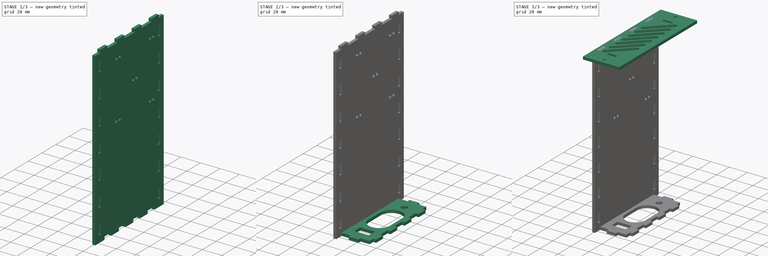
[diagram: build sequence overview — one tinted view per stage of 3, left to right]
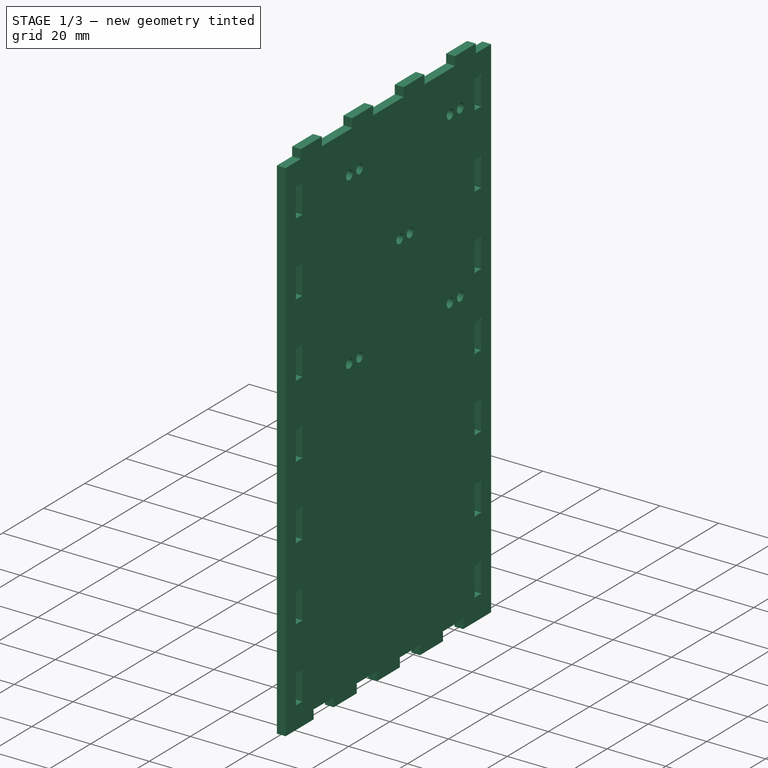
[diagram: stage 1 of 3 — iso view after this stage's code; geometry added in this stage tinted green]
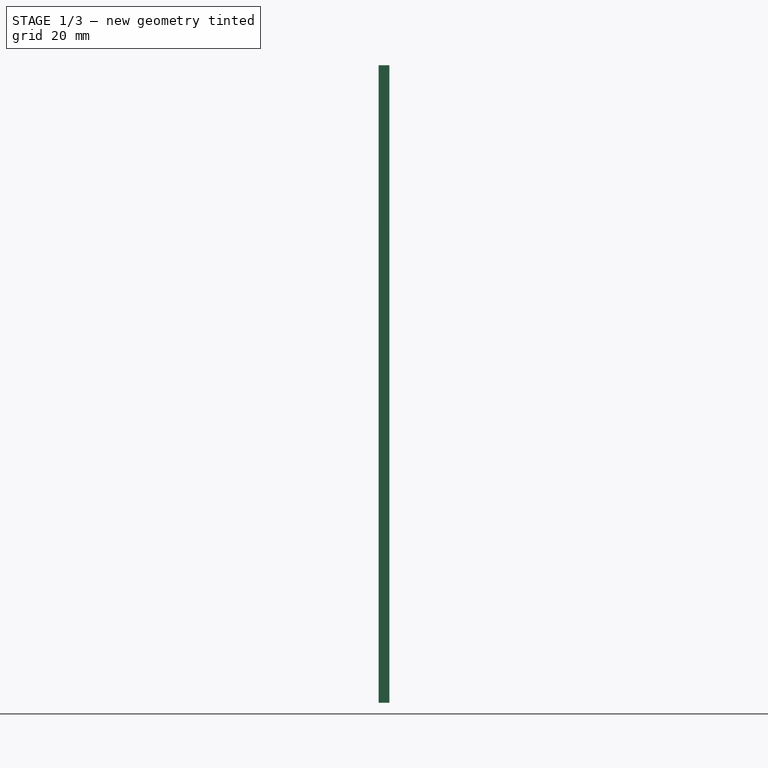
[diagram: stage 1 of 3 — front view after this stage's code; geometry added in this stage tinted green]
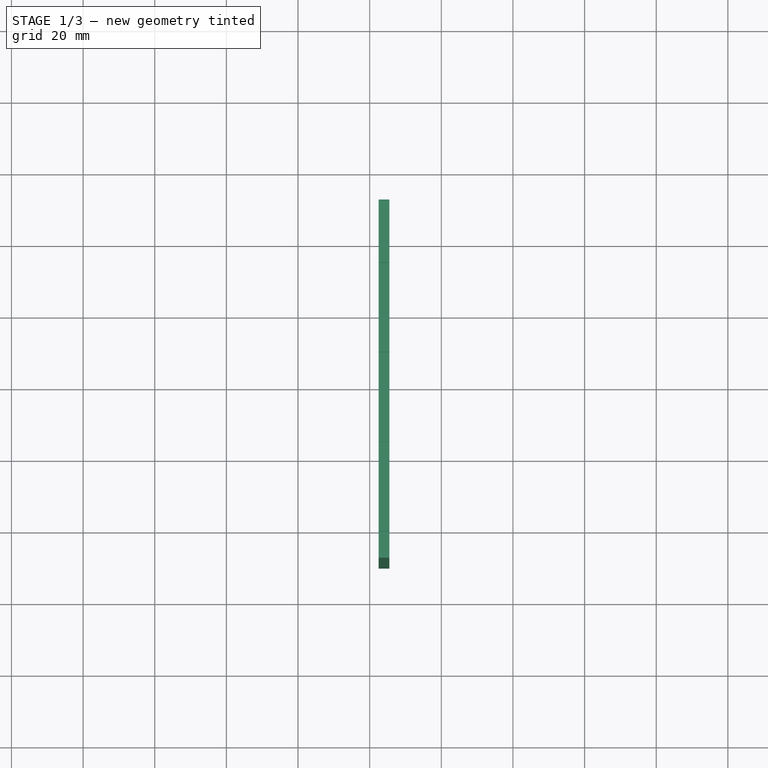
[diagram: stage 1 of 3 — top view after this stage's code; geometry added in this stage tinted green]
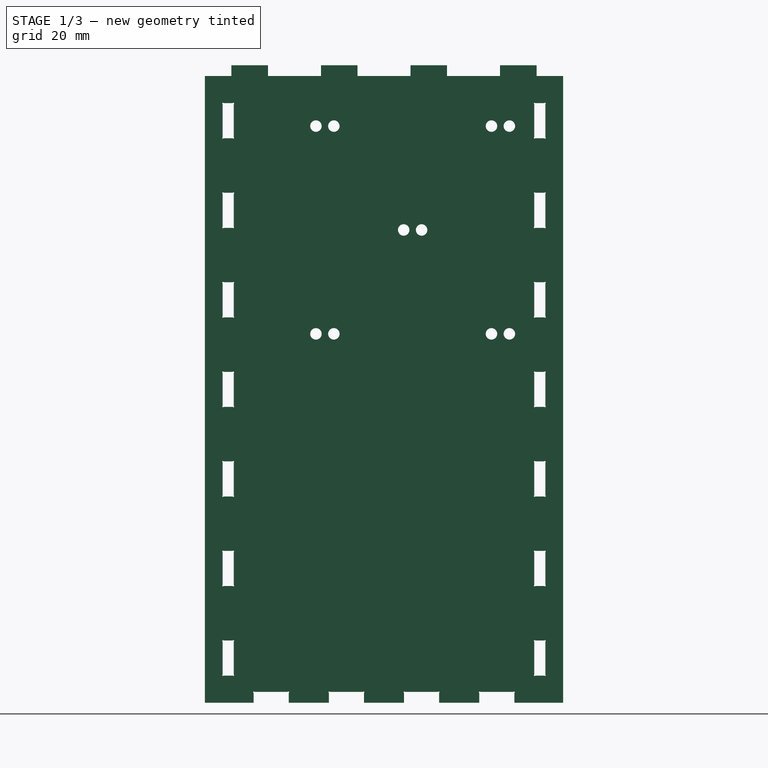
[diagram: stage 1 of 3 — right view after this stage's code; geometry added in this stage tinted green]
FCSTD DOCUMENT  (FreeCAD 0.18R16146 (Git))
Label: pibox_base
License: All rights reserved
LicenseURL: http://en.wikipedia.org/wiki/All_rights_reserved
objects: Part::Feature×12, Sketcher::SketchObject×4, PartDesign::Body×4, PartDesign::FeatureBase×3, PartDesign::Pocket×3, Part::FeaturePython×2, App::DocumentObjectGroup×1, PartDesign::ShapeBinder×1
note: 32 computed .brp shape members not serialized (recipe doc carries the construction recipe); baked Part::Feature solids carry a one-line shape summary decoded from their .brp

FEATURE [PartDesign::Body] Body002  label="Back"
  BaseFeature = -> bottom_panel_tab
  Group = -> [BaseFeature001,Sketch002,Pocket001]
  Origin = -> Origin002
  Tip = -> Pocket001
FEATURE [PartDesign::FeatureBase] BaseFeature002
  BaseFeature = -> right_panel_tab
FEATURE [Sketcher::SketchObject] Sketch003
  ExternalGeometry = -> [BaseFeature002]
  MapMode = 5
  Placement = pos=(-17.5,0,0) rot=(0.57735,-0.57735,-0.57735;2.0944rad)
  Support = -> [BaseFeature002]
  sketch-geometry (19):
    g0: LineSegment [constr] StartX=-35 StartY=72 StartZ=0 EndX=14 EndY=72 EndZ=0
    g1: LineSegment [constr] StartX=14 StartY=72 StartZ=0 EndX=14 EndY=14 EndZ=0
    g2: LineSegment [constr] StartX=14 StartY=14 StartZ=0 EndX=-35 EndY=14 EndZ=0
    g3: LineSegment [constr] StartX=-35 StartY=14 StartZ=0 EndX=-35 EndY=72 EndZ=0
    g4: Circle CenterX=-35 CenterY=72 CenterZ=0 NormalX=0 NormalY=0 NormalZ=1 AngleXU=0 Radius=1.6
    g5: Circle CenterX=14 CenterY=72 CenterZ=0 NormalX=0 NormalY=0 NormalZ=1 AngleXU=0 Radius=1.6
    g6: Circle CenterX=14 CenterY=14 CenterZ=0 NormalX=0 NormalY=0 NormalZ=1 AngleXU=0 Radius=1.6
    g7: Circle CenterX=-35 CenterY=14 CenterZ=0 NormalX=0 NormalY=0 NormalZ=1 AngleXU=0 Radius=1.6
    g8: Circle CenterX=-10.5 CenterY=43 CenterZ=0 NormalX=0 NormalY=0 NormalZ=1 AngleXU=0 Radius=1.6
    g9: LineSegment [constr] StartX=-30 StartY=72 StartZ=0 EndX=19 EndY=72 EndZ=0
    g10: LineSegment [constr] StartX=19 StartY=72 StartZ=0 EndX=19 EndY=14 EndZ=0
    g11: LineSegment [constr] StartX=19 StartY=14 StartZ=0 EndX=-30 EndY=14 EndZ=0
    g12: LineSegment [constr] StartX=-30 StartY=14 StartZ=0 EndX=-30 EndY=72 EndZ=0
    g13: Circle CenterX=-30 CenterY=72 CenterZ=0 NormalX=0 NormalY=0 NormalZ=1 AngleXU=0 Radius=1.6
    g14: Circle CenterX=19 CenterY=72 CenterZ=0 NormalX=0 NormalY=0 NormalZ=1 AngleXU=0 Radius=1.6
    g15: Circle CenterX=19 CenterY=14 CenterZ=0 NormalX=0 NormalY=0 NormalZ=1 AngleXU=0 Radius=1.6
    g16: Circle CenterX=-30 CenterY=14 CenterZ=0 NormalX=0 NormalY=0 NormalZ=1 AngleXU=0 Radius=1.6
    g17: Circle CenterX=-5.5 CenterY=43 CenterZ=0 NormalX=0 NormalY=0 NormalZ=1 AngleXU=0 Radius=1.6
    g18: LineSegment [constr] StartX=-35 StartY=72 StartZ=0 EndX=-30 EndY=72 EndZ=0
  constraints (46):
    c: Coincident(g0,g1)
    c: Coincident(g1,g2)
    c: Coincident(g2,g3)
    c: Coincident(g3,g0)
    c: Horizontal(g0)
    c: Horizontal(g2)
    c: Vertical(g1)
    c: Vertical(g3)
    c: Coincident(g4,g0)
    c: Diameter(g4) = 3.2  'M3_dia'
    c: Equal(g4,g5) = 3.2  'M3_dia'
    c: Coincident(g5,g0)
    c: Equal(g4,g6) = 3.2  'M3_dia'
    c: Coincident(g6,g1)
    c: Equal(g4,g7) = 3.2  'M3_dia'
    c: Coincident(g7,g2)
    c: DistanceY(g3,g3) = 58
    c: DistanceX(g0,g0) = 49
    c: DistanceX(g-3,g4) = 15
    c: Equal(g4,g8) = 3.2  'M3_dia'
    c: Symmetric(g5,g7,g8)
    c: DistanceY(g4,g-4) = 14
    c: Coincident(g9,g10)
    c: Coincident(g10,g11)
    c: Coincident(g11,g12)
    c: Coincident(g12,g9)
    c: Horizontal(g9)
    c: Horizontal(g11)
    c: Vertical(g10)
    c: Vertical(g12)
    c: Coincident(g13,g9)
    c: Diameter(g13) = 3.2  'M3_dia'
    c: Equal(g13,g14) = 3.2  'M3_dia'
    c: Coincident(g14,g9)
    c: Equal(g13,g15) = 3.2  'M3_dia'
    c: Coincident(g15,g10)
    c: Equal(g13,g16) = 3.2  'M3_dia'
    c: Coincident(g16,g11)
    c: DistanceY(g12,g12) = 58
    c: DistanceX(g9,g9) = 49
    c: Equal(g13,g17) = 3.2  'M3_dia'
    c: Symmetric(g14,g16,g17)
    c: Coincident(g0,g18)
    c: Coincident(g9,g18)
    c: Distance(g18) = 5
    c: Horizontal(g18)
FEATURE [PartDesign::Pocket] Pocket002
  BaseFeature = -> BaseFeature002
  Length = 5
  Length2 = 100
  Profile = -> Sketch003
  Type = 1
FEATURE [PartDesign::Body] Body003  label="Mount Base"
  BaseFeature = -> right_panel_tab
  Group = -> [BaseFeature002,Sketch003,Pocket002]
  Origin = -> Origin003
  Tip = -> Pocket002
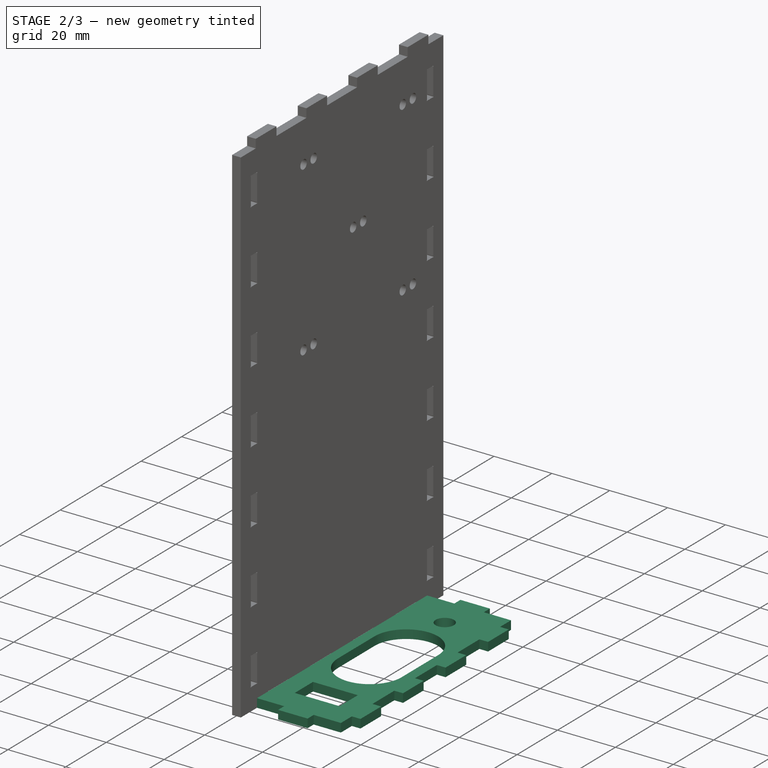
[diagram: stage 2 of 3 — iso view after this stage's code; geometry added in this stage tinted green]
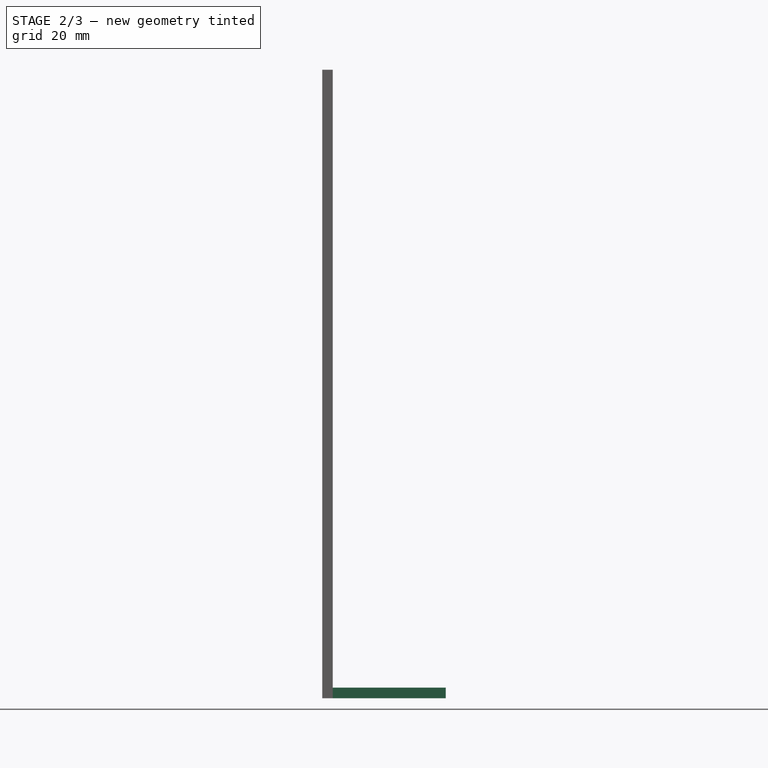
[diagram: stage 2 of 3 — front view after this stage's code; geometry added in this stage tinted green]
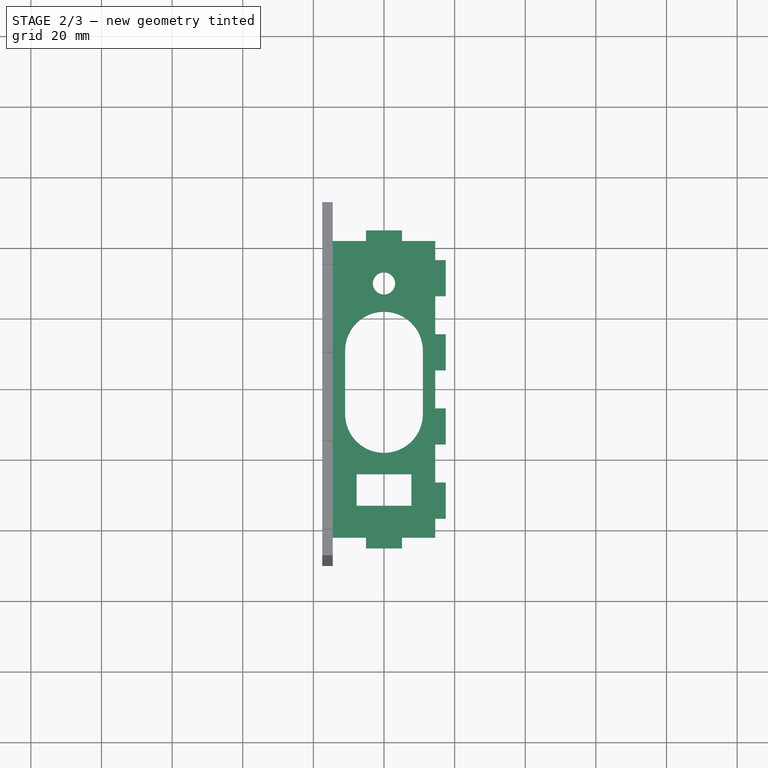
[diagram: stage 2 of 3 — top view after this stage's code; geometry added in this stage tinted green]
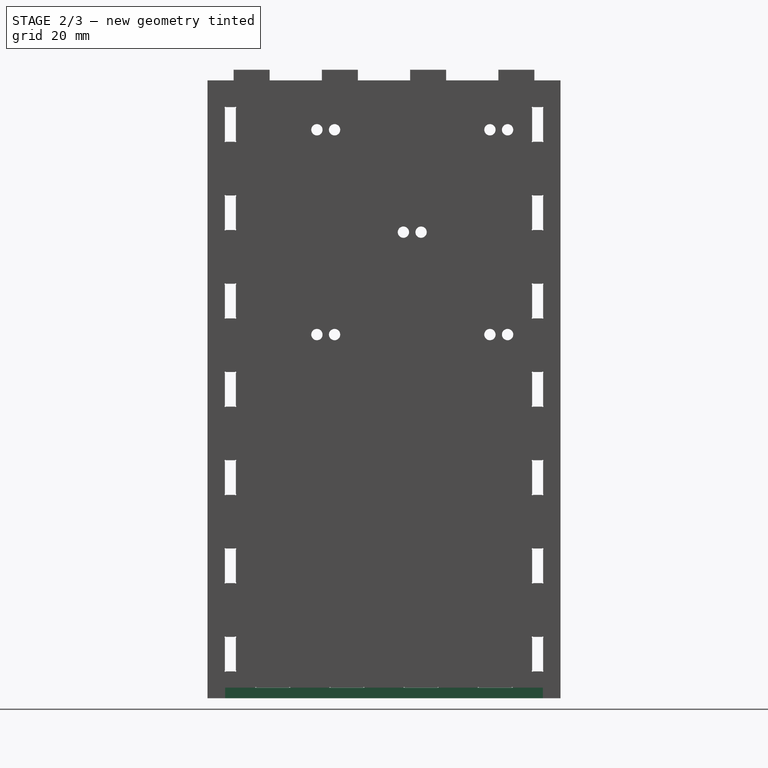
[diagram: stage 2 of 3 — right view after this stage's code; geometry added in this stage tinted green]
FEATURE [PartDesign::Body] Body001  label="Front Panel"
  BaseFeature = -> top_panel_tab
  Group = -> [BaseFeature,Pocket]
  Origin = -> Origin001
  Tip = -> Pocket
FEATURE [PartDesign::FeatureBase] BaseFeature001
  BaseFeature = -> bottom_panel_tab
FEATURE [Sketcher::SketchObject] Sketch002
  ExternalGeometry = -> [BaseFeature001]
  MapMode = 5
  Placement = pos=(0,0,-89) rot=(1,0,0;3.14159rad)
  Support = -> [BaseFeature001]
  sketch-geometry (13):
    g0: LineSegment StartX=-7.75 StartY=33 StartZ=0 EndX=7.75 EndY=33 EndZ=0
    g1: LineSegment StartX=7.75 StartY=33 StartZ=0 EndX=7.75 EndY=24 EndZ=0
    g2: LineSegment StartX=7.75 StartY=24 StartZ=0 EndX=-7.75 EndY=24 EndZ=0
    g3: LineSegment StartX=-7.75 StartY=24 StartZ=0 EndX=-7.75 EndY=33 EndZ=0
    g4: GeomPoint X=0 Y=28.5 Z=0
    g5: Circle CenterX=0 CenterY=-30 CenterZ=0 NormalX=0 NormalY=0 NormalZ=1 AngleXU=0 Radius=3.15
    g6: GeomPoint X=4e-16 Y=-42 Z=0
    g7: ArcOfCircle CenterX=0 CenterY=-11 CenterZ=0 NormalX=0 NormalY=0 NormalZ=1 AngleXU=0 Radius=11 StartAngle=3.14159 EndAngle=6.28319
    g8: ArcOfCircle CenterX=7e-16 CenterY=7 CenterZ=0 NormalX=0 NormalY=0 NormalZ=1 AngleXU=0 Radius=11 StartAngle=0 EndAngle=3.14159
    g9: LineSegment StartX=11 StartY=-11 StartZ=0 EndX=11 EndY=7 EndZ=0
    g10: LineSegment StartX=-11 StartY=-11 StartZ=0 EndX=-11 EndY=7 EndZ=0
    g11: GeomPoint X=0 Y=18 Z=0
    g12: GeomPoint X=0 Y=-22 Z=0
  constraints (31):
    c: Coincident(g0,g1)
    c: Coincident(g1,g2)
    c: Coincident(g2,g3)
    c: Coincident(g3,g0)
    c: Horizontal(g0)
    c: Horizontal(g2)
    c: Vertical(g1)
    c: Vertical(g3)
    c: DistanceY(g1,g1) = 9
    c: DistanceX(g0,g0) = 15.5
    c: PointOnObject(g4,g-2)
    c: Symmetric(g1,g0,g4)
    c: DistanceY(g0,g-3) = 9
    c: Diameter(g5) = 6.3
    c: Symmetric(g-6,g-6,g6)
    c: Tangent(g7,g10) = 1.5708
    c: Tangent(g7,g9) = -1.5708
    c: Tangent(g9,g8) = -1.5708
    c: Tangent(g10,g8) = 1.5708
    c: Vertical(g9)
    c: Equal(g7,g8)
    c: PointOnObject(g5,g-2)
    c: DistanceY(g6,g5) = 12
    c: PointOnObject(g7,g-2)
    c: PointOnObject(g11,g8)
    c: PointOnObject(g11,g-2)
    c: PointOnObject(g12,g7)
    c: PointOnObject(g12,g-2)
    c: DistanceY(g6,g12) = 20
    c: DistanceY(g11,g2) = 6
    c: DistanceX(g8,g8) = 22
FEATURE [PartDesign::Pocket] Pocket001
  BaseFeature = -> BaseFeature001
  Length = 5
  Length2 = 100
  Profile = -> Sketch002
  Type = 1
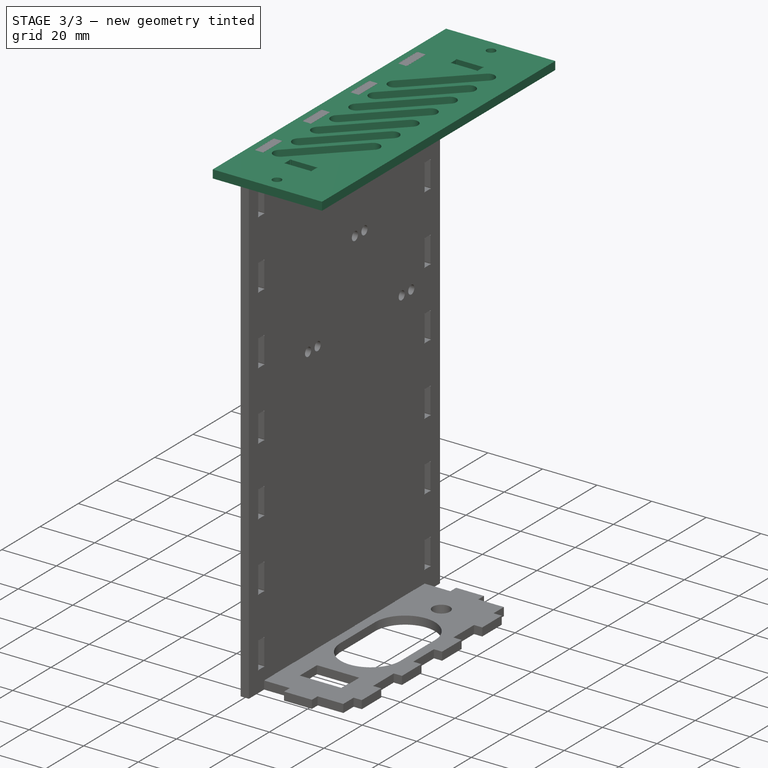
[diagram: stage 3 of 3 — iso view after this stage's code; geometry added in this stage tinted green]
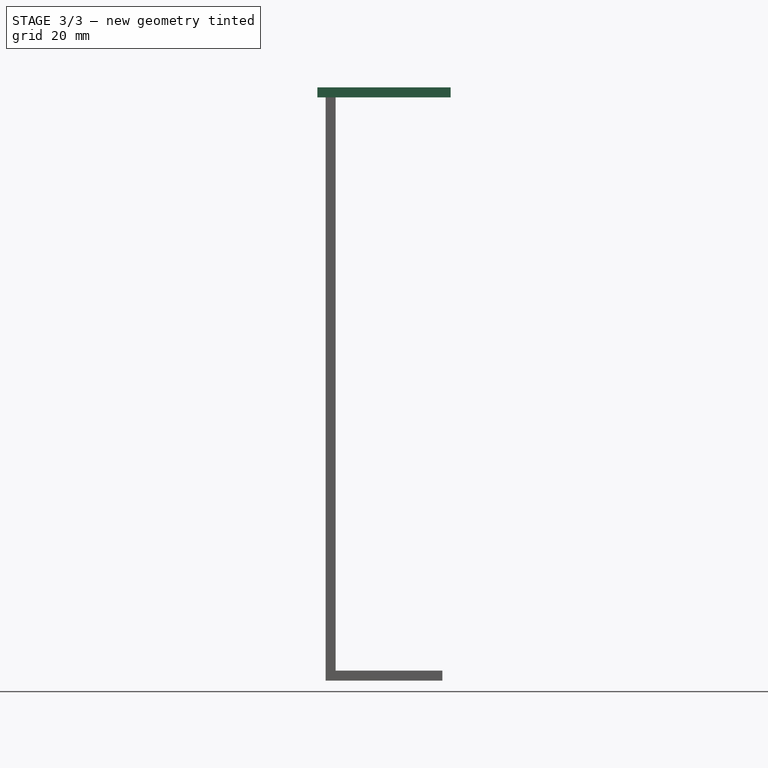
[diagram: stage 3 of 3 — front view after this stage's code; geometry added in this stage tinted green]
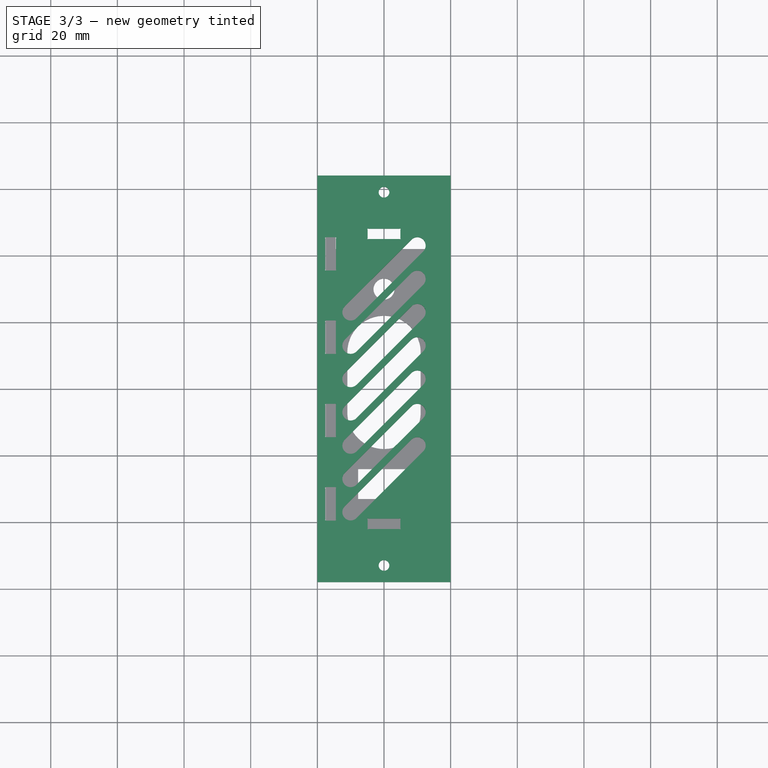
[diagram: stage 3 of 3 — top view after this stage's code; geometry added in this stage tinted green]
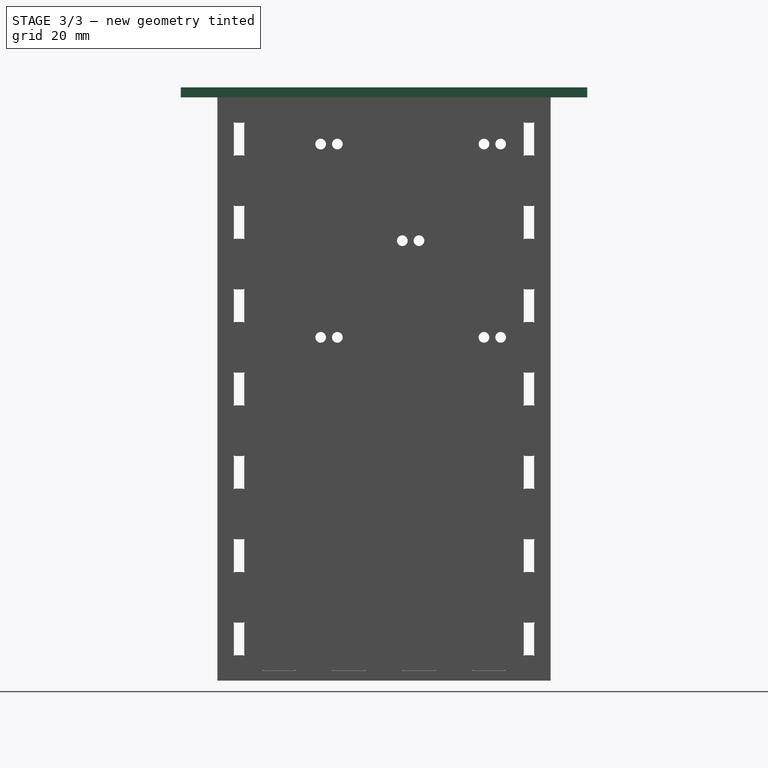
[diagram: stage 3 of 3 — right view after this stage's code; geometry added in this stage tinted green]
FEATURE [Part::Feature] face_panel
  Placement = pos=(0,0,-1.5) rot=(0,0,1;0rad)
  shape: bbox 29 x 3 x 175 mm, 6 faces (baked)
FEATURE [Part::Feature] left_panel
  Placement = pos=(0,0,-1.5) rot=(0,0,1;0rad)
  shape: bbox 3 x 100 x 175 mm, 6 faces (baked)
FEATURE [Part::Feature] bottom_panel
  Placement = pos=(0,0,-1.5) rot=(0,0,1;0rad)
  shape: bbox 29 x 84 x 3 mm, 6 faces (baked)
FEATURE [Part::Feature] behind_panel
  Placement = pos=(0,-87,-1.5) rot=(0,0,1;0rad)
  shape: bbox 29 x 3 x 175 mm, 6 faces (baked)
FEATURE [Part::Feature] right_panel
  Placement = pos=(-32,0,-1.5) rot=(0,0,1;0rad)
  shape: bbox 3 x 100 x 175 mm, 6 faces (baked)
FEATURE [Part::Feature] top_panel
  Placement = pos=(0,0,-1.5) rot=(0,0,1;0rad)
  shape: bbox 40 x 122 x 3 mm, 6 faces (baked)
FEATURE [Part::FeaturePython] Box  # WARN: FeaturePython — macro-defined, semantics opaque (R4)
  parts = -> [face_panel,behind_panel,left_panel,right_panel,bottom_panel,top_panel]
FEATURE [App::DocumentObjectGroup] MultiJoin_origin_parts
  Group = -> [face_panel,left_panel,right_panel,bottom_panel,top_panel,behind_panel]
FEATURE [Part::Feature] face_panel_tab
  shape: bbox 35 x 3 x 178 mm, 80 faces (baked)
FEATURE [Part::Feature] left_panel_tab
  shape: bbox 3 x 100 x 175 mm, 98 faces (baked)
FEATURE [Part::Feature] right_panel_tab
  shape: bbox 3 x 100 x 178 mm, 202 faces (baked)
FEATURE [Part::Feature] bottom_panel_tab
  shape: bbox 35 x 90 x 3 mm, 66 faces (baked)
FEATURE [Part::Feature] top_panel_tab
  shape: bbox 40 x 122 x 3 mm, 66 faces (baked)
FEATURE [Part::Feature] behind_panel_tab
  shape: bbox 35 x 3 x 178 mm, 80 faces (baked)
FEATURE [Part::FeaturePython] MultiJoin  # WARN: FeaturePython — macro-defined, semantics opaque (R4)
  fromParts = -> [MultiJoin_origin_parts,face_panel,left_panel,right_panel,bottom_panel,top_panel,behind_panel]
  generatedParts = -> [face_panel_tab,left_panel_tab,right_panel_tab,bottom_panel_tab,top_panel_tab,behind_panel_tab]
FEATURE [PartDesign::ShapeBinder] Referencetop_panel_tab
  Support = -> [top_panel_tab]
  TraceSupport = false
FEATURE [Sketcher::SketchObject] Sketch
  MapMode = 5
  Placement = pos=(0,0,89) rot=(0,0,1;0rad)
  Support = -> [top_panel_tab]
  sketch-geometry (78):
    g0: Circle CenterX=0 CenterY=56 CenterZ=0 NormalX=0 NormalY=0 NormalZ=1 AngleXU=0 Radius=1.6
    g1: Circle CenterX=0 CenterY=-56 CenterZ=0 NormalX=0 NormalY=0 NormalZ=1 AngleXU=0 Radius=1.6
    g2: ArcOfCircle CenterX=-10 CenterY=-40 CenterZ=0 NormalX=0 NormalY=0 NormalZ=1 AngleXU=0 Radius=2.5 StartAngle=2.35619 EndAngle=5.49779
    g3: ArcOfCircle CenterX=10 CenterY=-20 CenterZ=0 NormalX=0 NormalY=0 NormalZ=1 AngleXU=0 Radius=2.5 StartAngle=5.49779 EndAngle=8.63938
    g4: LineSegment StartX=-8.23223 StartY=-41.7678 StartZ=0 EndX=11.7678 EndY=-21.7678 EndZ=0
    g5: LineSegment StartX=-11.7678 StartY=-38.2322 StartZ=0 EndX=8.23223 EndY=-18.2322 EndZ=0
    g6: LineSegment [constr] StartX=-10 StartY=-40 StartZ=0 EndX=10 EndY=-20 EndZ=0
    g7: GeomPoint X=0 Y=-30 Z=0
    g8: LineSegment [constr] StartX=-10 StartY=-20 StartZ=0 EndX=10 EndY=-20 EndZ=0
    g9: LineSegment [constr] StartX=10 StartY=-20 StartZ=0 EndX=10 EndY=-40 EndZ=0
    g10: LineSegment [constr] StartX=10 StartY=-40 StartZ=0 EndX=-10 EndY=-40 EndZ=0
    g11: LineSegment [constr] StartX=-10 StartY=-40 StartZ=0 EndX=-10 EndY=-20 EndZ=0
    g12: ArcOfCircle CenterX=-10 CenterY=-30 CenterZ=0 NormalX=0 NormalY=0 NormalZ=1 AngleXU=0 Radius=2.5 StartAngle=2.35619 EndAngle=5.49779
    g13: ArcOfCircle CenterX=10 CenterY=-10 CenterZ=0 NormalX=0 NormalY=0 NormalZ=1 AngleXU=0 Radius=2.5 StartAngle=5.49779 EndAngle=8.63938
    g14: LineSegment StartX=-8.23223 StartY=-31.7678 StartZ=0 EndX=11.7678 EndY=-11.7678 EndZ=0
    g15: LineSegment StartX=-11.7678 StartY=-28.2322 StartZ=0 EndX=8.23223 EndY=-8.23223 EndZ=0
    g16: LineSegment [constr] StartX=-10 StartY=-30 StartZ=0 EndX=10 EndY=-10 EndZ=0
    g17: GeomPoint X=1.8e-15 Y=-20 Z=0
    g18: LineSegment [constr] StartX=-10 StartY=-10 StartZ=0 EndX=10 EndY=-10 EndZ=0
    g19: LineSegment [constr] StartX=10 StartY=-10 StartZ=0 EndX=10 EndY=-30 EndZ=0
    g20: LineSegment [constr] StartX=10 StartY=-30 StartZ=0 EndX=-10 EndY=-30 EndZ=0
    g21: LineSegment [constr] StartX=-10 StartY=-30 StartZ=0 EndX=-10 EndY=-10 EndZ=0
    g22: LineSegment [constr] StartX=-11.7678 StartY=-38.2322 StartZ=0 EndX=-11.7678 EndY=-28.2322 EndZ=0
    g23: ArcOfCircle CenterX=-10 CenterY=-20 CenterZ=0 NormalX=0 NormalY=0 NormalZ=1 AngleXU=0 Radius=2.5 StartAngle=2.35619 EndAngle=5.49779
    g24: ArcOfCircle CenterX=10 CenterY=6.644e-13 CenterZ=0 NormalX=0 NormalY=0 NormalZ=1 AngleXU=0 Radius=2.5 StartAngle=5.49779 EndAngle=8.63938
    g25: LineSegment StartX=-8.23223 StartY=-21.7678 StartZ=0 EndX=11.7678 EndY=-1.76777 EndZ=0
    g26: LineSegment StartX=-11.7678 StartY=-18.2322 StartZ=0 EndX=8.23223 EndY=1.76777 EndZ=0
    g27: LineSegment [constr] StartX=-10 StartY=-20 StartZ=0 EndX=10 EndY=6.644e-13 EndZ=0
    g28: GeomPoint X=1.8e-15 Y=-10 Z=0
    g29: LineSegment [constr] StartX=-10 StartY=6.644e-13 StartZ=0 EndX=10 EndY=6.644e-13 EndZ=0
    g30: LineSegment [constr] StartX=10 StartY=6.644e-13 StartZ=0 EndX=10 EndY=-20 EndZ=0
    g31: LineSegment [constr] StartX=10 StartY=-20 StartZ=0 EndX=-10 EndY=-20 EndZ=0
    g32: LineSegment [constr] StartX=-10 StartY=-20 StartZ=0 EndX=-10 EndY=6.644e-13 EndZ=0
    g33: LineSegment [constr] StartX=-11.7678 StartY=-28.2322 StartZ=0 EndX=-11.7678 EndY=-18.2322 EndZ=0
    g34: ArcOfCircle CenterX=-10 CenterY=-10 CenterZ=0 NormalX=0 NormalY=0 NormalZ=1 AngleXU=0 Radius=2.5 StartAngle=2.35619 EndAngle=5.49779
    g35: ArcOfCircle CenterX=10 CenterY=10 CenterZ=0 NormalX=0 NormalY=0 NormalZ=1 AngleXU=0 Radius=2.5 StartAngle=5.49779 EndAngle=8.63938
    g36: LineSegment StartX=-8.23223 StartY=-11.7678 StartZ=0 EndX=11.7678 EndY=8.23223 EndZ=0
    g37: LineSegment StartX=-11.7678 StartY=-8.23223 StartZ=0 EndX=8.23223 EndY=11.7678 EndZ=0
    g38: LineSegment [constr] StartX=-10 StartY=-10 StartZ=0 EndX=10 EndY=10 EndZ=0
    g39: GeomPoint X=0 Y=0 Z=0
    g40: LineSegment [constr] StartX=-10 StartY=10 StartZ=0 EndX=10 EndY=10 EndZ=0
    g41: LineSegment [constr] StartX=10 StartY=10 StartZ=0 EndX=10 EndY=-10 EndZ=0
    g42: LineSegment [constr] StartX=10 StartY=-10 StartZ=0 EndX=-10 EndY=-10 EndZ=0
    g43: LineSegment [constr] StartX=-10 StartY=-10 StartZ=0 EndX=-10 EndY=10 EndZ=0
    g44: LineSegment [constr] StartX=-11.7678 StartY=-18.2322 StartZ=0 EndX=-11.7678 EndY=-8.23223 EndZ=0
    g45: ArcOfCircle CenterX=-10 CenterY=8.455e-13 CenterZ=0 NormalX=0 NormalY=0 NormalZ=1 AngleXU=0 Radius=2.5 StartAngle=2.35619 EndAngle=5.49779
    g46: ArcOfCircle CenterX=10 CenterY=20 CenterZ=0 NormalX=0 NormalY=0 NormalZ=1 AngleXU=0 Radius=2.5 StartAngle=5.49779 EndAngle=8.63938
    g47: LineSegment StartX=-8.23223 StartY=-1.76777 StartZ=0 EndX=11.7678 EndY=18.2322 EndZ=0
    g48: LineSegment StartX=-11.7678 StartY=1.76777 StartZ=0 EndX=8.23223 EndY=21.7678 EndZ=0
    g49: LineSegment [constr] StartX=-10 StartY=8.455e-13 StartZ=0 EndX=10 EndY=20 EndZ=0
    g50: GeomPoint X=-1.461e-13 Y=10 Z=0
    g51: LineSegment [constr] StartX=-10 StartY=20 StartZ=0 EndX=10 EndY=20 EndZ=0
    g52: LineSegment [constr] StartX=10 StartY=20 StartZ=0 EndX=10 EndY=8.455e-13 EndZ=0
    g53: LineSegment [constr] StartX=10 StartY=8.455e-13 StartZ=0 EndX=-10 EndY=8.455e-13 EndZ=0
    g54: LineSegment [constr] StartX=-10 StartY=8.455e-13 StartZ=0 EndX=-10 EndY=20 EndZ=0
    g55: LineSegment [constr] StartX=-11.7678 StartY=-8.23223 StartZ=0 EndX=-11.7678 EndY=1.76777 EndZ=0
    g56: ArcOfCircle CenterX=-10 CenterY=10 CenterZ=0 NormalX=0 NormalY=0 NormalZ=1 AngleXU=0 Radius=2.5 StartAngle=2.35619 EndAngle=5.49779
    g57: ArcOfCircle CenterX=10 CenterY=30 CenterZ=0 NormalX=0 NormalY=0 NormalZ=1 AngleXU=0 Radius=2.5 StartAngle=5.49779 EndAngle=8.63938
    g58: LineSegment StartX=-8.23223 StartY=8.23223 StartZ=0 EndX=11.7678 EndY=28.2322 EndZ=0
    g59: LineSegment StartX=-11.7678 StartY=11.7678 StartZ=0 EndX=8.23223 EndY=31.7678 EndZ=0
    g60: LineSegment [constr] StartX=-10 StartY=10 StartZ=0 EndX=10 EndY=30 EndZ=0
    g61: GeomPoint X=-1.445e-13 Y=20 Z=0
    g62: LineSegment [constr] StartX=-10 StartY=30 StartZ=0 EndX=10 EndY=30 EndZ=0
    g63: LineSegment [constr] StartX=10 StartY=30 StartZ=0 EndX=10 EndY=10 EndZ=0
    g64: LineSegment [constr] StartX=10 StartY=10 StartZ=0 EndX=-10 EndY=10 EndZ=0
    g65: LineSegment [constr] StartX=-10 StartY=10 StartZ=0 EndX=-10 EndY=30 EndZ=0
    g66: LineSegment [constr] StartX=-11.7678 StartY=1.76777 StartZ=0 EndX=-11.7678 EndY=11.7678 EndZ=0
    g67: ArcOfCircle CenterX=-10 CenterY=20 CenterZ=0 NormalX=0 NormalY=0 NormalZ=1 AngleXU=0 Radius=2.5 StartAngle=2.35619 EndAngle=5.49779
    g68: ArcOfCircle CenterX=10 CenterY=40 CenterZ=0 NormalX=0 NormalY=0 NormalZ=1 AngleXU=0 Radius=2.5 StartAngle=5.49779 EndAngle=8.63938
    g69: LineSegment StartX=-8.23223 StartY=18.2322 StartZ=0 EndX=11.7678 EndY=38.2322 EndZ=0
    g70: LineSegment StartX=-11.7678 StartY=21.7678 StartZ=0 EndX=8.23223 EndY=41.7678 EndZ=0
    g71: LineSegment [constr] StartX=-10 StartY=20 StartZ=0 EndX=10 EndY=40 EndZ=0
    g72: GeomPoint X=-1.449e-13 Y=30 Z=0
    g73: LineSegment [constr] StartX=-10 StartY=40 StartZ=0 EndX=10 EndY=40 EndZ=0
    g74: LineSegment [constr] StartX=10 StartY=40 StartZ=0 EndX=10 EndY=20 EndZ=0
    g75: LineSegment [constr] StartX=10 StartY=20 StartZ=0 EndX=-10 EndY=20 EndZ=0
    g76: LineSegment [constr] StartX=-10 StartY=20 StartZ=0 EndX=-10 EndY=40 EndZ=0
    g77: LineSegment [constr] StartX=-11.7678 StartY=11.7678 StartZ=0 EndX=-11.7678 EndY=21.7678 EndZ=0
  constraints (177):
    c: PointOnObject(g0,g-2)
    c: Diameter(g0) = 3.2
    c: Equal(g0,g1) = 3.2
    c: DistanceY(g1,g0) = 112
    c: Symmetric(g1,g0,g-1)
    c: Tangent(g2,g5) = 1.5708
    c: Tangent(g2,g4) = -1.5708
    c: Tangent(g4,g3) = -1.5708
    c: Tangent(g5,g3) = 1.5708
    c: Equal(g2,g3)
    c: Coincident(g6,g2)
    c: Coincident(g6,g3)
    c: Distance(g3,g3) = 5
    c: PointOnObject(g7,g-2)
    c: DistanceX(g2,g7) = 10
    c: Coincident(g8,g9)
    c: Coincident(g9,g10)
    c: Coincident(g10,g11)
    c: Coincident(g11,g8)
    c: Horizontal(g8)
    c: Horizontal(g10)
    c: Vertical(g9)
    c: Vertical(g11)
    c: Coincident(g2,g10)
    c: Coincident(g3,g8)
    c: Symmetric(g3,g2,g7)
    c: Equal(g10,g9)
    c: Tangent(g12,g15) = 1.5708
    c: Tangent(g12,g14) = -1.5708
    c: Tangent(g14,g13) = -1.5708
    c: Tangent(g15,g13) = 1.5708
    c: Equal(g12,g13)
    c: Coincident(g16,g12)
    c: Coincident(g16,g13)
    c: Distance(g13,g13) = 5
    c: DistanceX(g12,g17) = 10
    c: Coincident(g18,g19)
    c: Coincident(g19,g20)
    c: Coincident(g20,g21)
    c: Coincident(g21,g18)
    c: Horizontal(g18)
    c: Horizontal(g20)
    c: Vertical(g19)
    c: Vertical(g21)
    c: Coincident(g12,g20)
    c: Coincident(g13,g18)
    c: Symmetric(g13,g12,g17)
    c: Equal(g20,g19)
    c: Coincident(g2,g22)
    c: Coincident(g12,g22)
    c: Distance(g22) = 10
    c: Angle(g22) = 1.5708
    c: Tangent(g23,g26) = 1.5708
    c: Tangent(g23,g25) = -1.5708
    c: Tangent(g25,g24) = -1.5708
    c: Tangent(g26,g24) = 1.5708
    c: Equal(g23,g24)
    c: Coincident(g27,g23)
    c: Coincident(g27,g24)
    c: Distance(g24,g24) = 5
    c: DistanceX(g23,g28) = 10
    c: Coincident(g29,g30)
    c: Coincident(g30,g31)
    c: Coincident(g31,g32)
    c: Coincident(g32,g29)
    c: Horizontal(g29)
    c: Horizontal(g31)
    c: Vertical(g30)
    c: Vertical(g32)
    c: Coincident(g23,g31)
    c: Coincident(g24,g29)
    c: Symmetric(g24,g23,g28)
    c: Equal(g31,g30)
    c: Coincident(g12,g33)
    c: Coincident(g23,g33)
    c: Equal(g22,g33)
    c: Parallel(g33,g22)
    c: Tangent(g34,g37) = 1.5708
    c: Tangent(g34,g36) = -1.5708
    c: Tangent(g36,g35) = -1.5708
    c: Tangent(g37,g35) = 1.5708
    c: Equal(g34,g35)
    c: Coincident(g38,g34)
    c: Coincident(g38,g35)
    c: Distance(g35,g35) = 5
    c: DistanceX(g34,g39) = 10
    c: Coincident(g40,g41)
    c: Coincident(g41,g42)
    c: Coincident(g42,g43)
    c: Coincident(g43,g40)
    c: Horizontal(g40)
    c: Horizontal(g42)
    c: Vertical(g41)
    c: Vertical(g43)
    c: Coincident(g34,g42)
    c: Coincident(g35,g40)
    c: Symmetric(g35,g34,g39)
    c: Equal(g42,g41)
    c: Coincident(g23,g44)
    c: Coincident(g34,g44)
    c: Equal(g22,g44)
    c: Tangent(g45,g48) = 1.5708
    c: Tangent(g45,g47) = -1.5708
    c: Tangent(g47,g46) = -1.5708
    c: Tangent(g48,g46) = 1.5708
    c: Equal(g45,g46)
    c: Coincident(g49,g45)
    c: Coincident(g49,g46)
    c: Distance(g46,g46) = 5
    c: DistanceX(g45,g50) = 10
    c: Coincident(g51,g52)
    c: Coincident(g52,g53)
    c: Coincident(g53,g54)
    c: Coincident(g54,g51)
    c: Horizontal(g51)
    c: Horizontal(g53)
    c: Vertical(g52)
    c: Vertical(g54)
    c: Coincident(g45,g53)
    c: Coincident(g46,g51)
    c: Symmetric(g46,g45,g50)
    c: Equal(g53,g52)
    c: Coincident(g34,g55)
    c: Coincident(g45,g55)
    c: Equal(g22,g55)
    c: Parallel(g55,g22)
    c: Tangent(g56,g59) = 1.5708
    c: Tangent(g56,g58) = -1.5708
    c: Tangent(g58,g57) = -1.5708
    c: Tangent(g59,g57) = 1.5708
    c: Equal(g56,g57)
    c: Coincident(g60,g56)
    c: Coincident(g60,g57)
    c: Distance(g57,g57) = 5
    c: DistanceX(g56,g61) = 10
    c: Coincident(g62,g63)
    c: Coincident(g63,g64)
    c: Coincident(g64,g65)
    c: Coincident(g65,g62)
    c: Horizontal(g62)
    c: Horizontal(g64)
    c: Vertical(g63)
    c: Vertical(g65)
    c: Coincident(g56,g64)
    c: Coincident(g57,g62)
    c: Symmetric(g57,g56,g61)
    c: Equal(g64,g63)
    c: Coincident(g45,g66)
    c: Coincident(g56,g66)
    c: Equal(g22,g66)
    c: Parallel(g66,g22)
    c: Tangent(g67,g70) = 1.5708
    c: Tangent(g67,g69) = -1.5708
    c: Tangent(g69,g68) = -1.5708
    c: Tangent(g70,g68) = 1.5708
    c: Equal(g67,g68)
    c: Coincident(g71,g67)
    c: Coincident(g71,g68)
    c: Distance(g68,g68) = 5
    c: DistanceX(g67,g72) = 10
    c: Coincident(g73,g74)
    c: Coincident(g74,g75)
    c: Coincident(g75,g76)
    c: Coincident(g76,g73)
    c: Horizontal(g73)
    c: Horizontal(g75)
    c: Vertical(g74)
    c: Vertical(g76)
    c: Coincident(g67,g75)
    c: Coincident(g68,g73)
    c: Symmetric(g68,g67,g72)
    c: Equal(g75,g74)
    c: Coincident(g56,g77)
    c: Coincident(g67,g77)
    c: Equal(g22,g77)
    c: Parallel(g77,g22)
    c: Coincident(g39,g-1)
FEATURE [PartDesign::Body] Body
  Group = -> [Referencetop_panel_tab,Sketch]
  Origin = -> Origin
FEATURE [PartDesign::FeatureBase] BaseFeature
  BaseFeature = -> top_panel_tab
FEATURE [Sketcher::SketchObject] Sketch001
  MapMode = 5
  Placement = pos=(0,0,89) rot=(0,0,1;0rad)
  Support = -> [top_panel_tab]
  sketch-geometry (78):
    g0: Circle CenterX=0 CenterY=56 CenterZ=0 NormalX=0 NormalY=0 NormalZ=1 AngleXU=0 Radius=1.6
    g1: Circle CenterX=0 CenterY=-56 CenterZ=0 NormalX=0 NormalY=0 NormalZ=1 AngleXU=0 Radius=1.6
    g2: ArcOfCircle CenterX=-10 CenterY=-40 CenterZ=0 NormalX=0 NormalY=0 NormalZ=1 AngleXU=0 Radius=2.5 StartAngle=2.35619 EndAngle=5.49779
    g3: ArcOfCircle CenterX=10 CenterY=-20 CenterZ=0 NormalX=0 NormalY=0 NormalZ=1 AngleXU=0 Radius=2.5 StartAngle=5.49779 EndAngle=8.63938
    g4: LineSegment StartX=-8.23223 StartY=-41.7678 StartZ=0 EndX=11.7678 EndY=-21.7678 EndZ=0
    g5: LineSegment StartX=-11.7678 StartY=-38.2322 StartZ=0 EndX=8.23223 EndY=-18.2322 EndZ=0
    g6: LineSegment [constr] StartX=-10 StartY=-40 StartZ=0 EndX=10 EndY=-20 EndZ=0
    g7: GeomPoint X=0 Y=-30 Z=0
    g8: LineSegment [constr] StartX=-10 StartY=-20 StartZ=0 EndX=10 EndY=-20 EndZ=0
    g9: LineSegment [constr] StartX=10 StartY=-20 StartZ=0 EndX=10 EndY=-40 EndZ=0
    g10: LineSegment [constr] StartX=10 StartY=-40 StartZ=0 EndX=-10 EndY=-40 EndZ=0
    g11: LineSegment [constr] StartX=-10 StartY=-40 StartZ=0 EndX=-10 EndY=-20 EndZ=0
    g12: ArcOfCircle CenterX=-10 CenterY=-30 CenterZ=0 NormalX=0 NormalY=0 NormalZ=1 AngleXU=0 Radius=2.5 StartAngle=2.35619 EndAngle=5.49779
    g13: ArcOfCircle CenterX=10 CenterY=-10 CenterZ=0 NormalX=0 NormalY=0 NormalZ=1 AngleXU=0 Radius=2.5 StartAngle=5.49779 EndAngle=8.63938
    g14: LineSegment StartX=-8.23223 StartY=-31.7678 StartZ=0 EndX=11.7678 EndY=-11.7678 EndZ=0
    g15: LineSegment StartX=-11.7678 StartY=-28.2322 StartZ=0 EndX=8.23223 EndY=-8.23223 EndZ=0
    g16: LineSegment [constr] StartX=-10 StartY=-30 StartZ=0 EndX=10 EndY=-10 EndZ=0
    g17: GeomPoint X=1.8e-15 Y=-20 Z=0
    g18: LineSegment [constr] StartX=-10 StartY=-10 StartZ=0 EndX=10 EndY=-10 EndZ=0
    g19: LineSegment [constr] StartX=10 StartY=-10 StartZ=0 EndX=10 EndY=-30 EndZ=0
    g20: LineSegment [constr] StartX=10 StartY=-30 StartZ=0 EndX=-10 EndY=-30 EndZ=0
    g21: LineSegment [constr] StartX=-10 StartY=-30 StartZ=0 EndX=-10 EndY=-10 EndZ=0
    g22: LineSegment [constr] StartX=-11.7678 StartY=-38.2322 StartZ=0 EndX=-11.7678 EndY=-28.2322 EndZ=0
    g23: ArcOfCircle CenterX=-10 CenterY=-20 CenterZ=0 NormalX=0 NormalY=0 NormalZ=1 AngleXU=0 Radius=2.5 StartAngle=2.35619 EndAngle=5.49779
    g24: ArcOfCircle CenterX=10 CenterY=6.644e-13 CenterZ=0 NormalX=0 NormalY=0 NormalZ=1 AngleXU=0 Radius=2.5 StartAngle=5.49779 EndAngle=8.63938
    g25: LineSegment StartX=-8.23223 StartY=-21.7678 StartZ=0 EndX=11.7678 EndY=-1.76777 EndZ=0
    g26: LineSegment StartX=-11.7678 StartY=-18.2322 StartZ=0 EndX=8.23223 EndY=1.76777 EndZ=0
    g27: LineSegment [constr] StartX=-10 StartY=-20 StartZ=0 EndX=10 EndY=6.644e-13 EndZ=0
    g28: GeomPoint X=1.8e-15 Y=-10 Z=0
    g29: LineSegment [constr] StartX=-10 StartY=6.644e-13 StartZ=0 EndX=10 EndY=6.644e-13 EndZ=0
    g30: LineSegment [constr] StartX=10 StartY=6.644e-13 StartZ=0 EndX=10 EndY=-20 EndZ=0
    g31: LineSegment [constr] StartX=10 StartY=-20 StartZ=0 EndX=-10 EndY=-20 EndZ=0
    g32: LineSegment [constr] StartX=-10 StartY=-20 StartZ=0 EndX=-10 EndY=6.644e-13 EndZ=0
    g33: LineSegment [constr] StartX=-11.7678 StartY=-28.2322 StartZ=0 EndX=-11.7678 EndY=-18.2322 EndZ=0
    g34: ArcOfCircle CenterX=-10 CenterY=-10 CenterZ=0 NormalX=0 NormalY=0 NormalZ=1 AngleXU=0 Radius=2.5 StartAngle=2.35619 EndAngle=5.49779
    g35: ArcOfCircle CenterX=10 CenterY=10 CenterZ=0 NormalX=0 NormalY=0 NormalZ=1 AngleXU=0 Radius=2.5 StartAngle=5.49779 EndAngle=8.63938
    g36: LineSegment StartX=-8.23223 StartY=-11.7678 StartZ=0 EndX=11.7678 EndY=8.23223 EndZ=0
    g37: LineSegment StartX=-11.7678 StartY=-8.23223 StartZ=0 EndX=8.23223 EndY=11.7678 EndZ=0
    g38: LineSegment [constr] StartX=-10 StartY=-10 StartZ=0 EndX=10 EndY=10 EndZ=0
    g39: GeomPoint X=0 Y=0 Z=0
    g40: LineSegment [constr] StartX=-10 StartY=10 StartZ=0 EndX=10 EndY=10 EndZ=0
    g41: LineSegment [constr] StartX=10 StartY=10 StartZ=0 EndX=10 EndY=-10 EndZ=0
    g42: LineSegment [constr] StartX=10 StartY=-10 StartZ=0 EndX=-10 EndY=-10 EndZ=0
    g43: LineSegment [constr] StartX=-10 StartY=-10 StartZ=0 EndX=-10 EndY=10 EndZ=0
    g44: LineSegment [constr] StartX=-11.7678 StartY=-18.2322 StartZ=0 EndX=-11.7678 EndY=-8.23223 EndZ=0
    g45: ArcOfCircle CenterX=-10 CenterY=8.455e-13 CenterZ=0 NormalX=0 NormalY=0 NormalZ=1 AngleXU=0 Radius=2.5 StartAngle=2.35619 EndAngle=5.49779
    g46: ArcOfCircle CenterX=10 CenterY=20 CenterZ=0 NormalX=0 NormalY=0 NormalZ=1 AngleXU=0 Radius=2.5 StartAngle=5.49779 EndAngle=8.63938
    g47: LineSegment StartX=-8.23223 StartY=-1.76777 StartZ=0 EndX=11.7678 EndY=18.2322 EndZ=0
    g48: LineSegment StartX=-11.7678 StartY=1.76777 StartZ=0 EndX=8.23223 EndY=21.7678 EndZ=0
    g49: LineSegment [constr] StartX=-10 StartY=8.455e-13 StartZ=0 EndX=10 EndY=20 EndZ=0
    g50: GeomPoint X=-1.461e-13 Y=10 Z=0
    g51: LineSegment [constr] StartX=-10 StartY=20 StartZ=0 EndX=10 EndY=20 EndZ=0
    g52: LineSegment [constr] StartX=10 StartY=20 StartZ=0 EndX=10 EndY=8.455e-13 EndZ=0
    g53: LineSegment [constr] StartX=10 StartY=8.455e-13 StartZ=0 EndX=-10 EndY=8.455e-13 EndZ=0
    g54: LineSegment [constr] StartX=-10 StartY=8.455e-13 StartZ=0 EndX=-10 EndY=20 EndZ=0
    g55: LineSegment [constr] StartX=-11.7678 StartY=-8.23223 StartZ=0 EndX=-11.7678 EndY=1.76777 EndZ=0
    g56: ArcOfCircle CenterX=-10 CenterY=10 CenterZ=0 NormalX=0 NormalY=0 NormalZ=1 AngleXU=0 Radius=2.5 StartAngle=2.35619 EndAngle=5.49779
    g57: ArcOfCircle CenterX=10 CenterY=30 CenterZ=0 NormalX=0 NormalY=0 NormalZ=1 AngleXU=0 Radius=2.5 StartAngle=5.49779 EndAngle=8.63938
    g58: LineSegment StartX=-8.23223 StartY=8.23223 StartZ=0 EndX=11.7678 EndY=28.2322 EndZ=0
    g59: LineSegment StartX=-11.7678 StartY=11.7678 StartZ=0 EndX=8.23223 EndY=31.7678 EndZ=0
    g60: LineSegment [constr] StartX=-10 StartY=10 StartZ=0 EndX=10 EndY=30 EndZ=0
    g61: GeomPoint X=-1.445e-13 Y=20 Z=0
    g62: LineSegment [constr] StartX=-10 StartY=30 StartZ=0 EndX=10 EndY=30 EndZ=0
    g63: LineSegment [constr] StartX=10 StartY=30 StartZ=0 EndX=10 EndY=10 EndZ=0
    g64: LineSegment [constr] StartX=10 StartY=10 StartZ=0 EndX=-10 EndY=10 EndZ=0
    g65: LineSegment [constr] StartX=-10 StartY=10 StartZ=0 EndX=-10 EndY=30 EndZ=0
    g66: LineSegment [constr] StartX=-11.7678 StartY=1.76777 StartZ=0 EndX=-11.7678 EndY=11.7678 EndZ=0
    g67: ArcOfCircle CenterX=-10 CenterY=20 CenterZ=0 NormalX=0 NormalY=0 NormalZ=1 AngleXU=0 Radius=2.5 StartAngle=2.35619 EndAngle=5.49779
    g68: ArcOfCircle CenterX=10 CenterY=40 CenterZ=0 NormalX=0 NormalY=0 NormalZ=1 AngleXU=0 Radius=2.5 StartAngle=5.49779 EndAngle=8.63938
    g69: LineSegment StartX=-8.23223 StartY=18.2322 StartZ=0 EndX=11.7678 EndY=38.2322 EndZ=0
    g70: LineSegment StartX=-11.7678 StartY=21.7678 StartZ=0 EndX=8.23223 EndY=41.7678 EndZ=0
    g71: LineSegment [constr] StartX=-10 StartY=20 StartZ=0 EndX=10 EndY=40 EndZ=0
    g72: GeomPoint X=-1.449e-13 Y=30 Z=0
    g73: LineSegment [constr] StartX=-10 StartY=40 StartZ=0 EndX=10 EndY=40 EndZ=0
    g74: LineSegment [constr] StartX=10 StartY=40 StartZ=0 EndX=10 EndY=20 EndZ=0
    g75: LineSegment [constr] StartX=10 StartY=20 StartZ=0 EndX=-10 EndY=20 EndZ=0
    g76: LineSegment [constr] StartX=-10 StartY=20 StartZ=0 EndX=-10 EndY=40 EndZ=0
    g77: LineSegment [constr] StartX=-11.7678 StartY=11.7678 StartZ=0 EndX=-11.7678 EndY=21.7678 EndZ=0
  constraints (177):
    c: PointOnObject(g0,g-2)
    c: Diameter(g0) = 3.2
    c: Equal(g0,g1) = 3.2
    c: DistanceY(g1,g0) = 112
    c: Symmetric(g1,g0,g-1)
    c: Tangent(g2,g5) = 1.5708
    c: Tangent(g2,g4) = -1.5708
    c: Tangent(g4,g3) = -1.5708
    c: Tangent(g5,g3) = 1.5708
    c: Equal(g2,g3)
    c: Coincident(g6,g2)
    c: Coincident(g6,g3)
    c: Distance(g3,g3) = 5
    c: PointOnObject(g7,g-2)
    c: DistanceX(g2,g7) = 10
    c: Coincident(g8,g9)
    c: Coincident(g9,g10)
    c: Coincident(g10,g11)
    c: Coincident(g11,g8)
    c: Horizontal(g8)
    c: Horizontal(g10)
    c: Vertical(g9)
    c: Vertical(g11)
    c: Coincident(g2,g10)
    c: Coincident(g3,g8)
    c: Symmetric(g3,g2,g7)
    c: Equal(g10,g9)
    c: Tangent(g12,g15) = 1.5708
    c: Tangent(g12,g14) = -1.5708
    c: Tangent(g14,g13) = -1.5708
    c: Tangent(g15,g13) = 1.5708
    c: Equal(g12,g13)
    c: Coincident(g16,g12)
    c: Coincident(g16,g13)
    c: Distance(g13,g13) = 5
    c: DistanceX(g12,g17) = 10
    c: Coincident(g18,g19)
    c: Coincident(g19,g20)
    c: Coincident(g20,g21)
    c: Coincident(g21,g18)
    c: Horizontal(g18)
    c: Horizontal(g20)
    c: Vertical(g19)
    c: Vertical(g21)
    c: Coincident(g12,g20)
    c: Coincident(g13,g18)
    c: Symmetric(g13,g12,g17)
    c: Equal(g20,g19)
    c: Coincident(g2,g22)
    c: Coincident(g12,g22)
    c: Distance(g22) = 10
    c: Angle(g22) = 1.5708
    c: Tangent(g23,g26) = 1.5708
    c: Tangent(g23,g25) = -1.5708
    c: Tangent(g25,g24) = -1.5708
    c: Tangent(g26,g24) = 1.5708
    c: Equal(g23,g24)
    c: Coincident(g27,g23)
    c: Coincident(g27,g24)
    c: Distance(g24,g24) = 5
    c: DistanceX(g23,g28) = 10
    c: Coincident(g29,g30)
    c: Coincident(g30,g31)
    c: Coincident(g31,g32)
    c: Coincident(g32,g29)
    c: Horizontal(g29)
    c: Horizontal(g31)
    c: Vertical(g30)
    c: Vertical(g32)
    c: Coincident(g23,g31)
    c: Coincident(g24,g29)
    c: Symmetric(g24,g23,g28)
    c: Equal(g31,g30)
    c: Coincident(g12,g33)
    c: Coincident(g23,g33)
    c: Equal(g22,g33)
    c: Parallel(g33,g22)
    c: Tangent(g34,g37) = 1.5708
    c: Tangent(g34,g36) = -1.5708
    c: Tangent(g36,g35) = -1.5708
    c: Tangent(g37,g35) = 1.5708
    c: Equal(g34,g35)
    c: Coincident(g38,g34)
    c: Coincident(g38,g35)
    c: Distance(g35,g35) = 5
    c: DistanceX(g34,g39) = 10
    c: Coincident(g40,g41)
    c: Coincident(g41,g42)
    c: Coincident(g42,g43)
    c: Coincident(g43,g40)
    c: Horizontal(g40)
    c: Horizontal(g42)
    c: Vertical(g41)
    c: Vertical(g43)
    c: Coincident(g34,g42)
    c: Coincident(g35,g40)
    c: Symmetric(g35,g34,g39)
    c: Equal(g42,g41)
    c: Coincident(g23,g44)
    c: Coincident(g34,g44)
    c: Equal(g22,g44)
    c: Tangent(g45,g48) = 1.5708
    c: Tangent(g45,g47) = -1.5708
    c: Tangent(g47,g46) = -1.5708
    c: Tangent(g48,g46) = 1.5708
    c: Equal(g45,g46)
    c: Coincident(g49,g45)
    c: Coincident(g49,g46)
    c: Distance(g46,g46) = 5
    c: DistanceX(g45,g50) = 10
    c: Coincident(g51,g52)
    c: Coincident(g52,g53)
    c: Coincident(g53,g54)
    c: Coincident(g54,g51)
    c: Horizontal(g51)
    c: Horizontal(g53)
    c: Vertical(g52)
    c: Vertical(g54)
    c: Coincident(g45,g53)
    c: Coincident(g46,g51)
    c: Symmetric(g46,g45,g50)
    c: Equal(g53,g52)
    c: Coincident(g34,g55)
    c: Coincident(g45,g55)
    c: Equal(g22,g55)
    c: Parallel(g55,g22)
    c: Tangent(g56,g59) = 1.5708
    c: Tangent(g56,g58) = -1.5708
    c: Tangent(g58,g57) = -1.5708
    c: Tangent(g59,g57) = 1.5708
    c: Equal(g56,g57)
    c: Coincident(g60,g56)
    c: Coincident(g60,g57)
    c: Distance(g57,g57) = 5
    c: DistanceX(g56,g61) = 10
    c: Coincident(g62,g63)
    c: Coincident(g63,g64)
    c: Coincident(g64,g65)
    c: Coincident(g65,g62)
    c: Horizontal(g62)
    c: Horizontal(g64)
    c: Vertical(g63)
    c: Vertical(g65)
    c: Coincident(g56,g64)
    c: Coincident(g57,g62)
    c: Symmetric(g57,g56,g61)
    c: Equal(g64,g63)
    c: Coincident(g45,g66)
    c: Coincident(g56,g66)
    c: Equal(g22,g66)
    c: Parallel(g66,g22)
    c: Tangent(g67,g70) = 1.5708
    c: Tangent(g67,g69) = -1.5708
    c: Tangent(g69,g68) = -1.5708
    c: Tangent(g70,g68) = 1.5708
    c: Equal(g67,g68)
    c: Coincident(g71,g67)
    c: Coincident(g71,g68)
    c: Distance(g68,g68) = 5
    c: DistanceX(g67,g72) = 10
    c: Coincident(g73,g74)
    c: Coincident(g74,g75)
    c: Coincident(g75,g76)
    c: Coincident(g76,g73)
    c: Horizontal(g73)
    c: Horizontal(g75)
    c: Vertical(g74)
    c: Vertical(g76)
    c: Coincident(g67,g75)
    c: Coincident(g68,g73)
    c: Symmetric(g68,g67,g72)
    c: Equal(g75,g74)
    c: Coincident(g56,g77)
    c: Coincident(g67,g77)
    c: Equal(g22,g77)
    c: Parallel(g77,g22)
    c: Coincident(g39,g-1)
FEATURE [PartDesign::Pocket] Pocket
  BaseFeature = -> BaseFeature
  Length = 5
  Length2 = 100
  Profile = -> Sketch001
  Type = 1
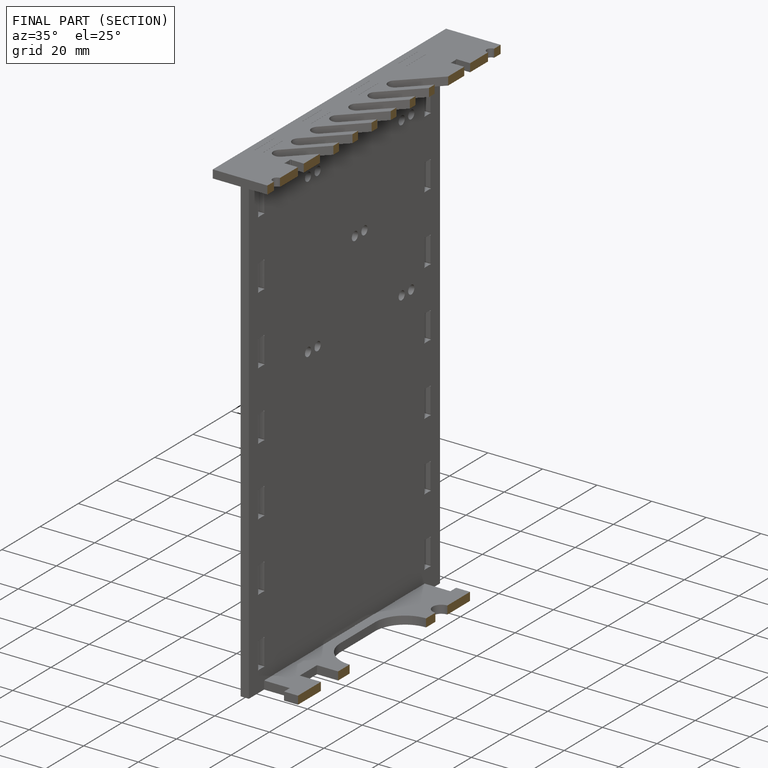
[diagram: finished part — half-section view (interior)]
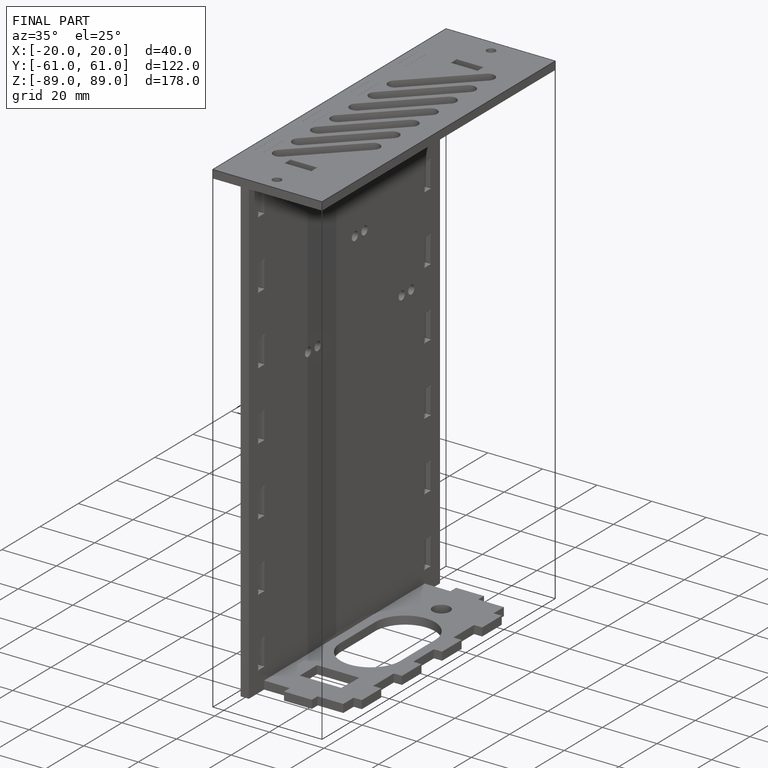
[diagram: finished part — iso view with bounding-box wireframe]
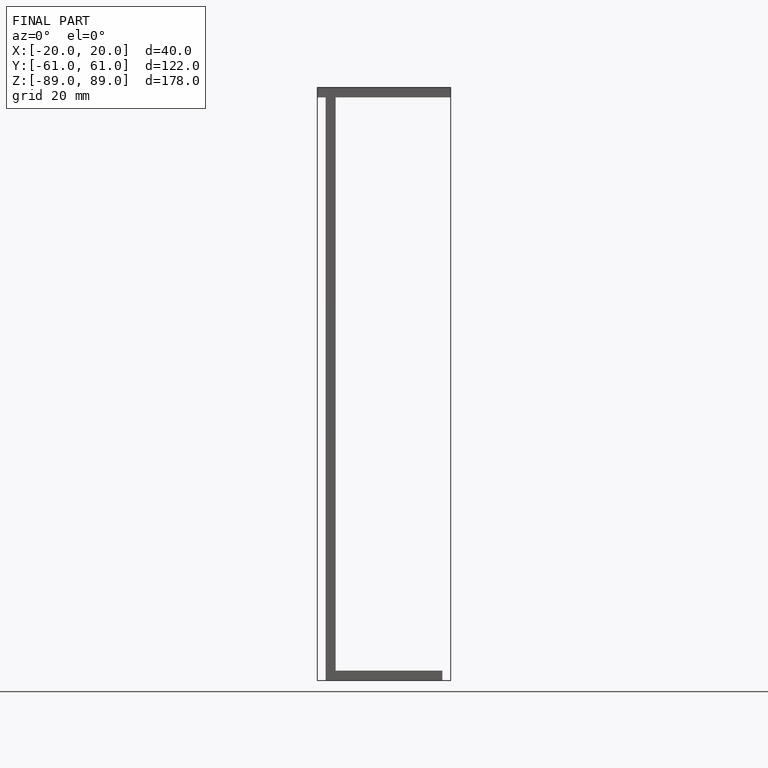
[diagram: finished part — front view with bounding-box wireframe]
